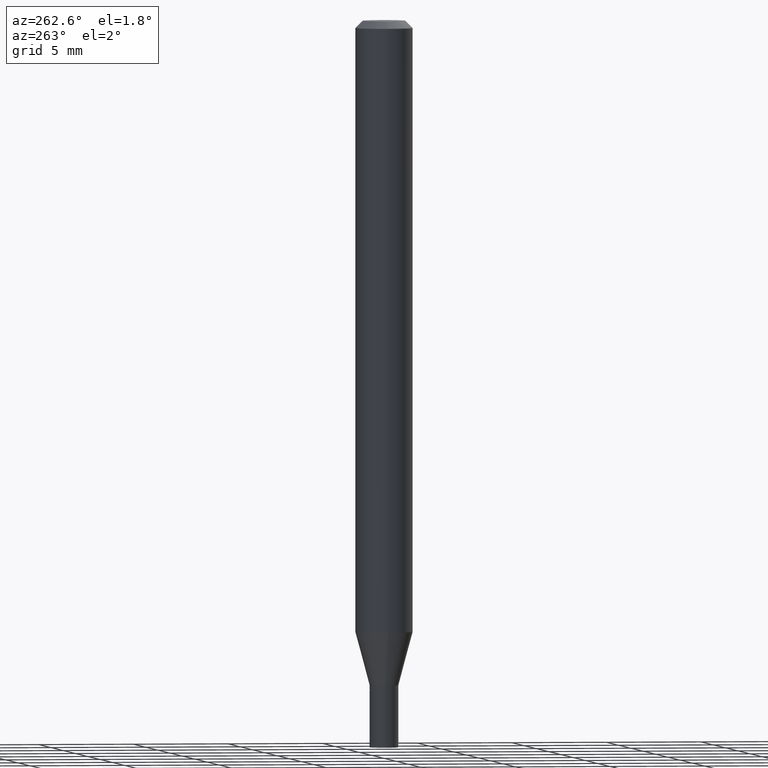
[diagram: clean part render]
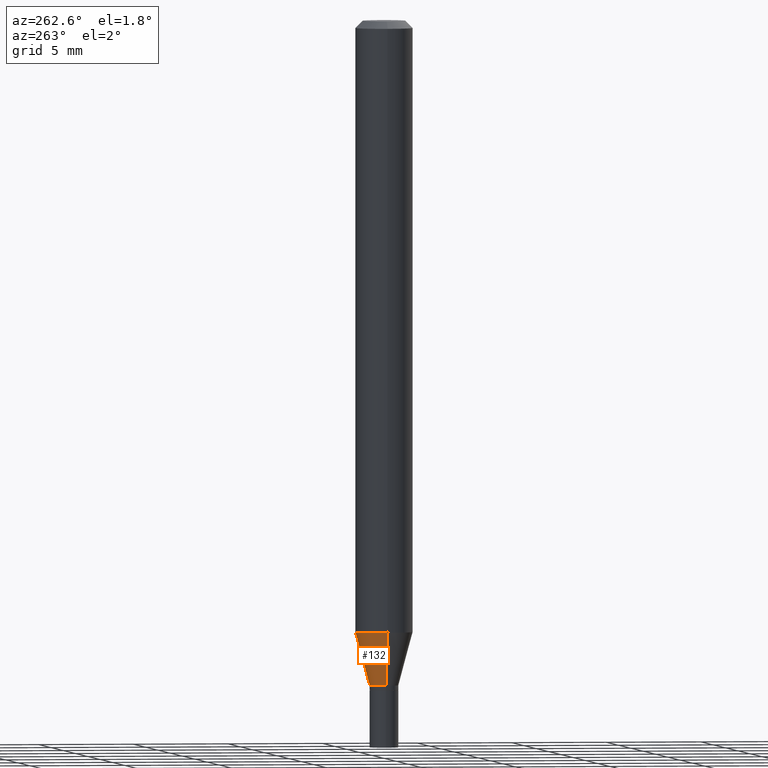
[diagram: same view with one face highlighted and labeled with its STEP entity id]
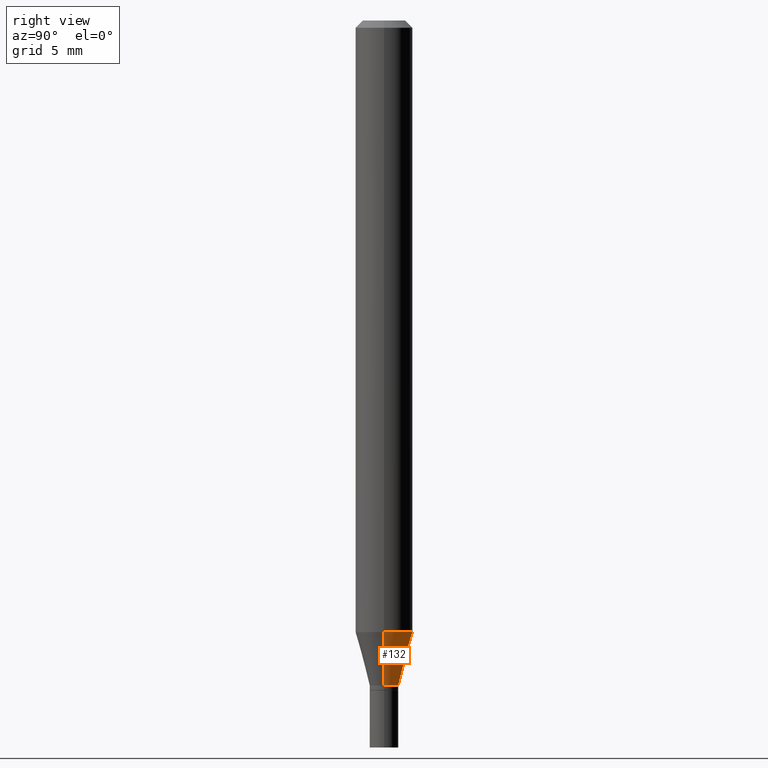
[diagram: same view with one face highlighted and labeled with its STEP entity id]
A machine part, auxiliary view. The second image highlights one B-rep face of the part: STEP entity #132.
A second angle (right view) of the same face is appended — the face is thin or edge-on in the first view.
In plain terms, the highlighted conical surface has half-angle 15 deg.
Its self-contained STEP definition (entity closure, byte-faithful):
#23 = CARTESIAN_POINT ( 'NONE',  ( 3.355183202086007133E-29, -4.790312396892795908E-15, -1.372000000000000108 ) ) ;
#24 = AXIS2_PLACEMENT_3D ( 'NONE', #23, #62, #420 ) ;
#25 = CARTESIAN_POINT ( 'NONE',  ( 0.05904999999999999832, -4.818259963378055761E-15, -1.261904501176718707 ) ) ;
#38 = EDGE_LOOP ( 'NONE', ( #357, #174, #75, #422 ) ) ;
#48 = CARTESIAN_POINT ( 'NONE',  ( -0.02954999999999991661, -4.283343775135014344E-15, -1.372000000000000108 ) ) ;
#49 = CARTESIAN_POINT ( 'NONE',  ( -0.05904999999999999832, -3.986340531794342137E-15, -1.261904501176718707 ) ) ;
#62 = DIRECTION ( 'NONE',  ( -2.445468806185136597E-29, 3.491481338843145583E-15, 1.000000000000000000 ) ) ;
#71 = AXIS2_PLACEMENT_3D ( 'NONE', #101, #131, #94 ) ;
#75 = ORIENTED_EDGE ( 'NONE', *, *, #427, .F. ) ;
#80 = CONICAL_SURFACE ( 'NONE', #144, 0.02954999999999991661, 0.2617993877991512952 ) ;
#91 = VECTOR ( 'NONE', #299, 39.37007874015748854 ) ;
#94 = DIRECTION ( 'NONE',  ( 1.000000000000000000, -6.982962677686273021E-15, 0.000000000000000000 ) ) ;
#101 = CARTESIAN_POINT ( 'NONE',  ( 3.085948094012280841E-29, -4.405916017260681630E-15, -1.261904501176718707 ) ) ;
#125 = CARTESIAN_POINT ( 'NONE',  ( 0.02954999999999991661, -4.996658944018425519E-15, -1.372000000000000108 ) ) ;
#131 = DIRECTION ( 'NONE',  ( -2.445468806185136597E-29, 3.491481338843145583E-15, 1.000000000000000000 ) ) ;
#132 = ADVANCED_FACE ( 'NONE', ( #335 ), #80, .T. ) ;
#144 = AXIS2_PLACEMENT_3D ( 'NONE', #169, #190, #375 ) ;
#152 = LINE ( 'NONE', #231, #91 ) ;
#169 = CARTESIAN_POINT ( 'NONE',  ( 3.355183202086007133E-29, -4.790312396892795908E-15, -1.372000000000000108 ) ) ;
#174 = ORIENTED_EDGE ( 'NONE', *, *, #361, .T. ) ;
#190 = DIRECTION ( 'NONE',  ( -2.445468806185136597E-29, 3.491481338843145583E-15, 1.000000000000000000 ) ) ;
#195 = VECTOR ( 'NONE', #343, 39.37007874015748854 ) ;
#213 = CIRCLE ( 'NONE', #24, 0.02954999999999991661 ) ;
#221 = VERTEX_POINT ( 'NONE', #49 ) ;
#231 = CARTESIAN_POINT ( 'NONE',  ( 0.02954999999999991661, -4.996658944018425519E-15, -1.372000000000000108 ) ) ;
#241 = VERTEX_POINT ( 'NONE', #48 ) ;
#242 = LINE ( 'NONE', #452, #195 ) ;
#256 = VERTEX_POINT ( 'NONE', #125 ) ;
#277 = EDGE_CURVE ( 'NONE', #256, #360, #152, .T. ) ;
#299 = DIRECTION ( 'NONE',  ( 0.2588190451025225713, 1.565188264969612304E-15, 0.9659258262890678681 ) ) ;
#311 = CIRCLE ( 'NONE', #71, 0.05904999999999999832 ) ;
#335 = FACE_OUTER_BOUND ( 'NONE', #38, .T. ) ;
#343 = DIRECTION ( 'NONE',  ( -0.2588190451025225713, 5.211531920934557353E-15, 0.9659258262890678681 ) ) ;
#357 = ORIENTED_EDGE ( 'NONE', *, *, #415, .T. ) ;
#360 = VERTEX_POINT ( 'NONE', #25 ) ;
#361 = EDGE_CURVE ( 'NONE', #241, #221, #242, .T. ) ;
#375 = DIRECTION ( 'NONE',  ( 1.000000000000000000, -6.982962677686281699E-15, 0.000000000000000000 ) ) ;
#415 = EDGE_CURVE ( 'NONE', #256, #241, #213, .T. ) ;
#420 = DIRECTION ( 'NONE',  ( 1.000000000000000000, -6.982962677686281699E-15, 0.000000000000000000 ) ) ;
#422 = ORIENTED_EDGE ( 'NONE', *, *, #277, .F. ) ;
#427 = EDGE_CURVE ( 'NONE', #360, #221, #311, .T. ) ;
#452 = CARTESIAN_POINT ( 'NONE',  ( -0.02954999999999991661, -4.580347018475686551E-15, -1.372000000000000108 ) ) ;